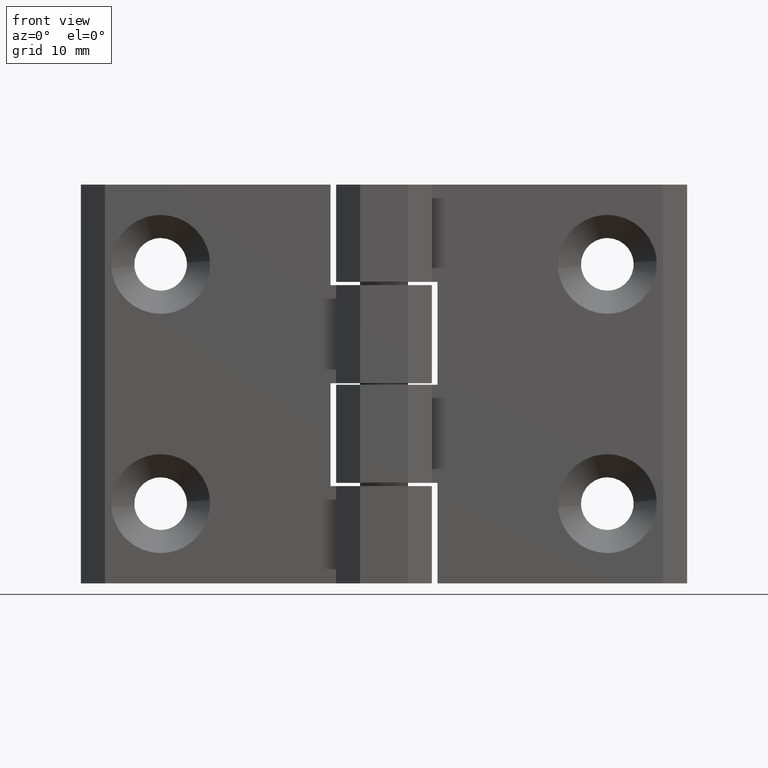
[diagram: clean part render]
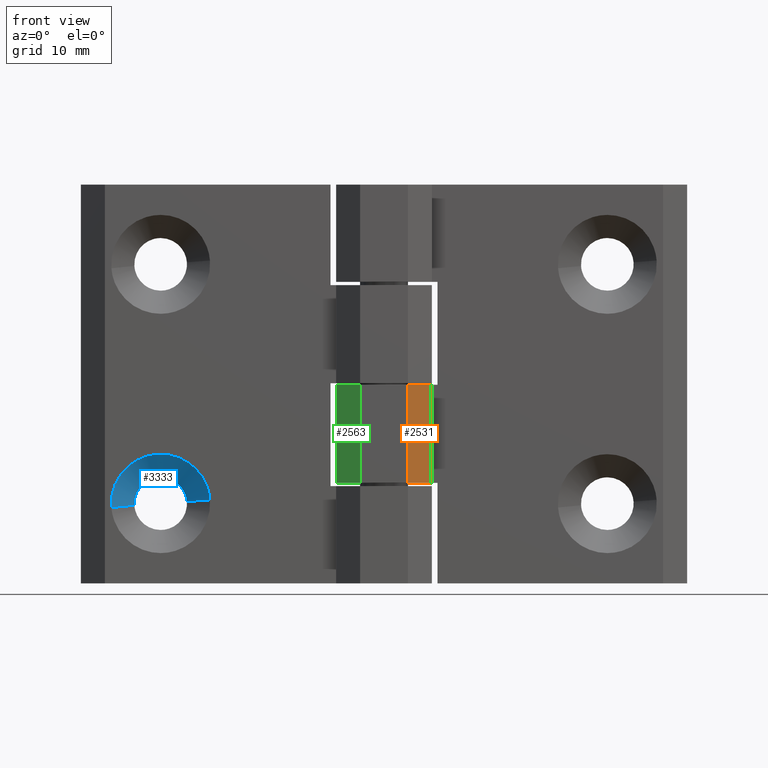
[diagram: same view with three faces highlighted in distinct colors, each labeled with its STEP entity id]
A machine part, front view with three faces highlighted in distinct colors.
Their STEP definitions:

[orange] entity #2531 — the highlighted face is a freeform B-spline surface patch.
#2034=CARTESIAN_POINT('',(3.000001472421405,-5.000000237487150,24.900001182686552));
#2035=VERTEX_POINT('',#2034);
#2041=CARTESIAN_POINT('',(6.000001614913700,-2.000000094994675,24.900001182686552));
#2042=VERTEX_POINT('',#2041);
#2043=CARTESIAN_POINT('',(6.000001614913700,-2.000000094994675,24.900001182686552));
#2044=CARTESIAN_POINT('',(3.000001472421405,-5.000000237487150,24.900001182686552));
#2045=QUASI_UNIFORM_CURVE('',1,(#2043,#2044),.UNSPECIFIED.,.F.,.U.);
#2046=EDGE_CURVE('',#2042,#2035,#2045,.T.);
#2111=CARTESIAN_POINT('',(6.000001614913700,-2.000000094994675,12.600000598467901));
#2112=VERTEX_POINT('',#2111);
#2118=CARTESIAN_POINT('',(3.000001472421405,-5.000000237487150,12.600000598467901));
#2119=VERTEX_POINT('',#2118);
#2120=CARTESIAN_POINT('',(6.000001614913700,-2.000000094994675,12.600000598467901));
#2121=CARTESIAN_POINT('',(3.000001472421405,-5.000000237487150,12.600000598467901));
#2122=QUASI_UNIFORM_CURVE('',1,(#2120,#2121),.UNSPECIFIED.,.F.,.U.);
#2123=EDGE_CURVE('',#2112,#2119,#2122,.T.);
#2512=CARTESIAN_POINT('',(6.149851577336646,-1.850150132571722,11.985615362198750));
#2513=CARTESIAN_POINT('',(2.850151617286826,-5.149850092621738,11.985615362198750));
#2514=CARTESIAN_POINT('',(6.149851577336646,-1.850150132571722,25.514386528926270));
#2515=CARTESIAN_POINT('',(2.850151617286826,-5.149850092621738,25.514386528926270));
#2516=B_SPLINE_SURFACE_WITH_KNOTS('',1,1,((#2512,#2514),(#2513,#2515)),.UNSPECIFIED.,.F.,.F.,.U.,(2,2),(2,2),(0.0,4.666480435264553),(0.0,13.528771166727520),.UNSPECIFIED.);
#2517=CARTESIAN_POINT('',(6.000001614913700,-2.000000094994675,24.900001182686552));
#2518=CARTESIAN_POINT('',(6.000001614913700,-2.000000094994675,12.600000598467901));
#2519=QUASI_UNIFORM_CURVE('',1,(#2517,#2518),.UNSPECIFIED.,.F.,.U.);
#2520=EDGE_CURVE('',#2042,#2112,#2519,.T.);
#2521=ORIENTED_EDGE('',*,*,#2520,.F.);
#2522=ORIENTED_EDGE('',*,*,#2046,.T.);
#2523=CARTESIAN_POINT('',(3.000001472421405,-5.000000237487150,24.900001182686552));
#2524=CARTESIAN_POINT('',(3.000001472421405,-5.000000237487150,12.600000598467901));
#2525=QUASI_UNIFORM_CURVE('',1,(#2523,#2524),.UNSPECIFIED.,.F.,.U.);
#2526=EDGE_CURVE('',#2035,#2119,#2525,.T.);
#2527=ORIENTED_EDGE('',*,*,#2526,.T.);
#2528=ORIENTED_EDGE('',*,*,#2123,.F.);
#2529=EDGE_LOOP('',(#2521,#2522,#2527,#2528));
#2530=FACE_OUTER_BOUND('',#2529,.T.);
#2531=ADVANCED_FACE('',(#2530),#2516,.F.);

[blue] entity #3333 — the highlighted face is a freeform B-spline surface patch.
#3138=CARTESIAN_POINT('',(-31.293842350973058,3.400000161489979,9.798542070784716));
#3139=VERTEX_POINT('',#3138);
#3183=CARTESIAN_POINT('',(-24.710172638287659,3.400000161402736,10.258916824428770));
#3184=VERTEX_POINT('',#3183);
#3200=CARTESIAN_POINT('',(-27.999998670071001,3.400000161490495,13.300000726710691));
#3201=VERTEX_POINT('',#3200);
#3202=CARTESIAN_POINT('',(-27.999998670071001,3.400000161490495,13.300000726710691));
#3203=CARTESIAN_POINT('',(-24.949511133326968,3.400000161490495,13.300000726710687));
#3204=CARTESIAN_POINT('',(-24.710172638287666,3.400000161402736,10.258916824428770));
#3212=(BOUNDED_CURVE()B_SPLINE_CURVE(2,(#3202,#3203,#3204),.UNSPECIFIED.,.F.,.U.)B_SPLINE_CURVE_WITH_KNOTS((3,3),(0.0,0.236331300563029),.UNSPECIFIED.)CURVE()GEOMETRIC_REPRESENTATION_ITEM()RATIONAL_B_SPLINE_CURVE((1.0,0.723120658686899,0.969723356026278))REPRESENTATION_ITEM(''));
#3213=EDGE_CURVE('',#3201,#3184,#3212,.T.);
#3215=CARTESIAN_POINT('',(-31.293842350973062,3.400000161489979,9.798542070784716));
#3216=CARTESIAN_POINT('',(-31.299997496883648,3.400000161490495,9.899177957114144));
#3217=CARTESIAN_POINT('',(-31.299997496883648,3.400000161490495,10.000001899898040));
#3218=CARTESIAN_POINT('',(-31.299997496883652,3.400000161490494,13.300000726710687));
#3219=CARTESIAN_POINT('',(-27.999998670071001,3.400000161490495,13.300000726710691));
#3227=(BOUNDED_CURVE()B_SPLINE_CURVE(2,(#3215,#3216,#3217,#3218,#3219),.UNSPECIFIED.,.F.,.U.)B_SPLINE_CURVE_WITH_KNOTS((3,2,3),(0.739332976895539,0.750000000000000,1.0),.UNSPECIFIED.)CURVE()GEOMETRIC_REPRESENTATION_ITEM()RATIONAL_B_SPLINE_CURVE((0.976072073078595,0.987502805071108,1.0,0.707106781186547,1.0))REPRESENTATION_ITEM(''));
#3228=EDGE_CURVE('',#3139,#3201,#3227,.T.);
#3267=CARTESIAN_POINT('',(-24.782449148451089,3.472500164934060,10.253228539042270));
#3268=CARTESIAN_POINT('',(-25.035675787595302,3.472500164934060,13.470778060662180));
#3269=CARTESIAN_POINT('',(-28.253225309215232,3.472500164934060,13.217551421517960));
#3270=CARTESIAN_POINT('',(-31.470774830835140,3.472500164934060,12.964324782373735));
#3271=CARTESIAN_POINT('',(-31.217548191690920,3.472500164934060,9.746775260753818));
#3272=CARTESIAN_POINT('',(-21.745028810296620,0.425687520218249,10.492278703998830));
#3273=CARTESIAN_POINT('',(-22.237305614397417,0.425687520218249,16.747248563773216));
#3274=CARTESIAN_POINT('',(-28.492275474171802,0.425687520218249,16.254971759672419));
#3275=CARTESIAN_POINT('',(-34.747245333946168,0.425687520218249,15.762694955571623));
#3276=CARTESIAN_POINT('',(-34.254968529845378,0.425687520218249,9.507725095797250));
#3284=(BOUNDED_SURFACE()B_SPLINE_SURFACE(2,1,((#3267,#3272),(#3268,#3273),(#3269,#3274),(#3270,#3275),(#3271,#3276)),.UNSPECIFIED.,.F.,.F.,.U.)B_SPLINE_SURFACE_WITH_KNOTS((3,2,3),(2,2),(0.0,10.395619618535230,20.791239237070460),(0.0,4.308843764166935),.UNSPECIFIED.)GEOMETRIC_REPRESENTATION_ITEM()RATIONAL_B_SPLINE_SURFACE(((1.0,1.0),(0.707106781186548,0.707106781186548),(1.0,1.0),(0.707106781186548,0.707106781186548),(1.0,1.0)))REPRESENTATION_ITEM('')SURFACE());
#3285=ORIENTED_EDGE('',*,*,#3213,.T.);
#3286=CARTESIAN_POINT('',(-21.819112233177989,0.500000023746775,10.486448212179351));
#3287=VERTEX_POINT('',#3286);
#3288=CARTESIAN_POINT('',(-24.710172638287659,3.400000161402736,10.258916824428770));
#3289=CARTESIAN_POINT('',(-21.819112233177989,0.500000023746775,10.486448212179351));
#3290=QUASI_UNIFORM_CURVE('',1,(#3288,#3289),.UNSPECIFIED.,.F.,.U.);
#3291=EDGE_CURVE('',#3184,#3287,#3290,.T.);
#3292=ORIENTED_EDGE('',*,*,#3291,.T.);
#3293=CARTESIAN_POINT('',(-27.999998670071001,0.500000023747903,16.200000864453280));
#3294=VERTEX_POINT('',#3293);
#3295=CARTESIAN_POINT('',(-27.999998670071001,0.500000023747903,16.200000864453280));
#3296=CARTESIAN_POINT('',(-22.268778578961484,0.500000023747903,16.200000864453283));
#3297=CARTESIAN_POINT('',(-21.819112233177989,0.500000023746775,10.486448212179356));
#3305=(BOUNDED_CURVE()B_SPLINE_CURVE(2,(#3295,#3296,#3297),.UNSPECIFIED.,.F.,.U.)B_SPLINE_CURVE_WITH_KNOTS((3,3),(0.0,0.236331300632288),.UNSPECIFIED.)CURVE()GEOMETRIC_REPRESENTATION_ITEM()RATIONAL_B_SPLINE_CURVE((1.0,0.723120658605758,0.969723356170815))REPRESENTATION_ITEM(''));
#3306=EDGE_CURVE('',#3294,#3287,#3305,.T.);
#3307=ORIENTED_EDGE('',*,*,#3306,.F.);
#3308=CARTESIAN_POINT('',(-34.180885106963999,0.500000023746777,9.513555587616732));
#3309=VERTEX_POINT('',#3308);
#3310=CARTESIAN_POINT('',(-34.180885106963999,0.500000023746777,9.513555587616732));
#3311=CARTESIAN_POINT('',(-34.199997634626229,0.500000023747903,9.756403277124543));
#3312=CARTESIAN_POINT('',(-34.199997634626243,0.500000023747903,10.000001899898040));
#3313=CARTESIAN_POINT('',(-34.199997634626229,0.500000023747903,16.200000864453287));
#3314=CARTESIAN_POINT('',(-27.999998670071001,0.500000023747903,16.200000864453280));
#3322=(BOUNDED_CURVE()B_SPLINE_CURVE(2,(#3310,#3311,#3312,#3313,#3314),.UNSPECIFIED.,.F.,.U.)B_SPLINE_CURVE_WITH_KNOTS((3,2,3),(0.736331300632288,0.750000000000000,1.0),.UNSPECIFIED.)CURVE()GEOMETRIC_REPRESENTATION_ITEM()RATIONAL_B_SPLINE_CURVE((0.969723356170815,0.983986122580789,1.0,0.707106781186547,1.0))REPRESENTATION_ITEM(''));
#3323=EDGE_CURVE('',#3309,#3294,#3322,.T.);
#3324=ORIENTED_EDGE('',*,*,#3323,.F.);
#3325=CARTESIAN_POINT('',(-31.293842350973058,3.400000161489979,9.798542070784716));
#3326=CARTESIAN_POINT('',(-34.180885106963999,0.500000023746777,9.513555587616732));
#3327=QUASI_UNIFORM_CURVE('',1,(#3325,#3326),.UNSPECIFIED.,.F.,.U.);
#3328=EDGE_CURVE('',#3139,#3309,#3327,.T.);
#3329=ORIENTED_EDGE('',*,*,#3328,.F.);
#3330=ORIENTED_EDGE('',*,*,#3228,.T.);
#3331=EDGE_LOOP('',(#3285,#3292,#3307,#3324,#3329,#3330));
#3332=FACE_OUTER_BOUND('',#3331,.T.);
#3333=ADVANCED_FACE('',(#3332),#3284,.F.);

[green] entity #2563 — the highlighted face is a freeform B-spline surface patch.
#2020=CARTESIAN_POINT('',(-5.999998192116490,-2.000000857934390,24.900001182686552));
#2021=VERTEX_POINT('',#2020);
#2027=CARTESIAN_POINT('',(-2.999998812563305,-5.000000237487150,24.900001182686552));
#2028=VERTEX_POINT('',#2027);
#2029=CARTESIAN_POINT('',(-2.999998812563305,-5.000000237487150,24.900001182686552));
#2030=CARTESIAN_POINT('',(-5.999998192116490,-2.000000857934390,24.900001182686552));
#2031=QUASI_UNIFORM_CURVE('',1,(#2029,#2030),.UNSPECIFIED.,.F.,.U.);
#2032=EDGE_CURVE('',#2028,#2021,#2031,.T.);
#2125=CARTESIAN_POINT('',(-2.999998812563305,-5.000000237487150,12.600000598467901));
#2126=VERTEX_POINT('',#2125);
#2132=CARTESIAN_POINT('',(-5.999998192116490,-2.000000857934390,12.600000598467901));
#2133=VERTEX_POINT('',#2132);
#2134=CARTESIAN_POINT('',(-2.999998812563305,-5.000000237487150,12.600000598467901));
#2135=CARTESIAN_POINT('',(-5.999998192116490,-2.000000857934390,12.600000598467901));
#2136=QUASI_UNIFORM_CURVE('',1,(#2134,#2135),.UNSPECIFIED.,.F.,.U.);
#2137=EDGE_CURVE('',#2126,#2133,#2136,.T.);
#2539=CARTESIAN_POINT('',(-2.999998812563305,-5.000000237487150,24.900001182686552));
#2540=CARTESIAN_POINT('',(-2.999998812563305,-5.000000237487150,12.600000598467901));
#2541=QUASI_UNIFORM_CURVE('',1,(#2539,#2540),.UNSPECIFIED.,.F.,.U.);
#2542=EDGE_CURVE('',#2028,#2126,#2541,.T.);
#2548=CARTESIAN_POINT('',(-2.850148972734818,-5.149850077315852,11.985615362198759));
#2549=CARTESIAN_POINT('',(-6.149848005122983,-1.850151044927862,11.985615362198759));
#2550=CARTESIAN_POINT('',(-2.850148972734818,-5.149850077315852,25.514386528926270));
#2551=CARTESIAN_POINT('',(-6.149848005122983,-1.850151044927862,25.514386528926270));
#2552=B_SPLINE_SURFACE_WITH_KNOTS('',1,1,((#2548,#2550),(#2549,#2551)),.UNSPECIFIED.,.F.,.F.,.U.,(2,2),(2,2),(0.0,4.666479123352598),(0.0,13.528771166727511),.UNSPECIFIED.);
#2553=ORIENTED_EDGE('',*,*,#2542,.F.);
#2554=ORIENTED_EDGE('',*,*,#2032,.T.);
#2555=CARTESIAN_POINT('',(-5.999998192116490,-2.000000857934390,24.900001182686552));
#2556=CARTESIAN_POINT('',(-5.999998192116490,-2.000000857934390,12.600000598467901));
#2557=QUASI_UNIFORM_CURVE('',1,(#2555,#2556),.UNSPECIFIED.,.F.,.U.);
#2558=EDGE_CURVE('',#2021,#2133,#2557,.T.);
#2559=ORIENTED_EDGE('',*,*,#2558,.T.);
#2560=ORIENTED_EDGE('',*,*,#2137,.F.);
#2561=EDGE_LOOP('',(#2553,#2554,#2559,#2560));
#2562=FACE_OUTER_BOUND('',#2561,.T.);
#2563=ADVANCED_FACE('',(#2562),#2552,.F.);